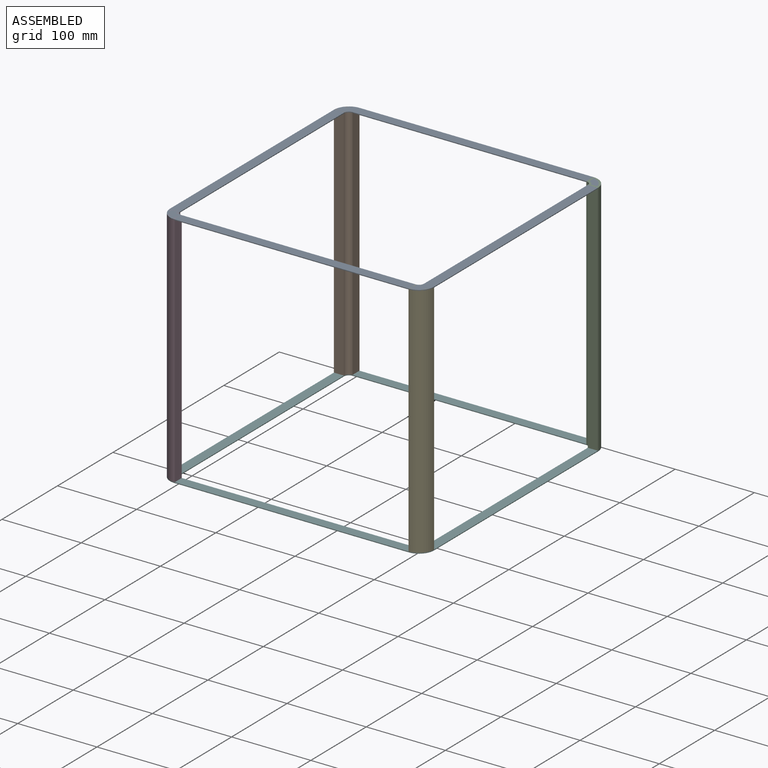
[diagram: assembled view]
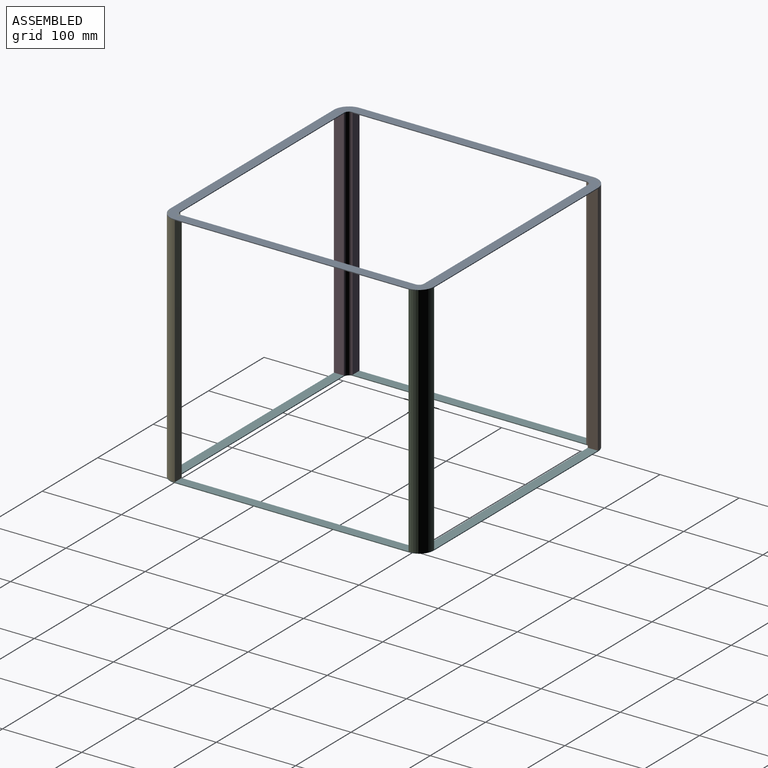
[diagram: assembled view, second angle]
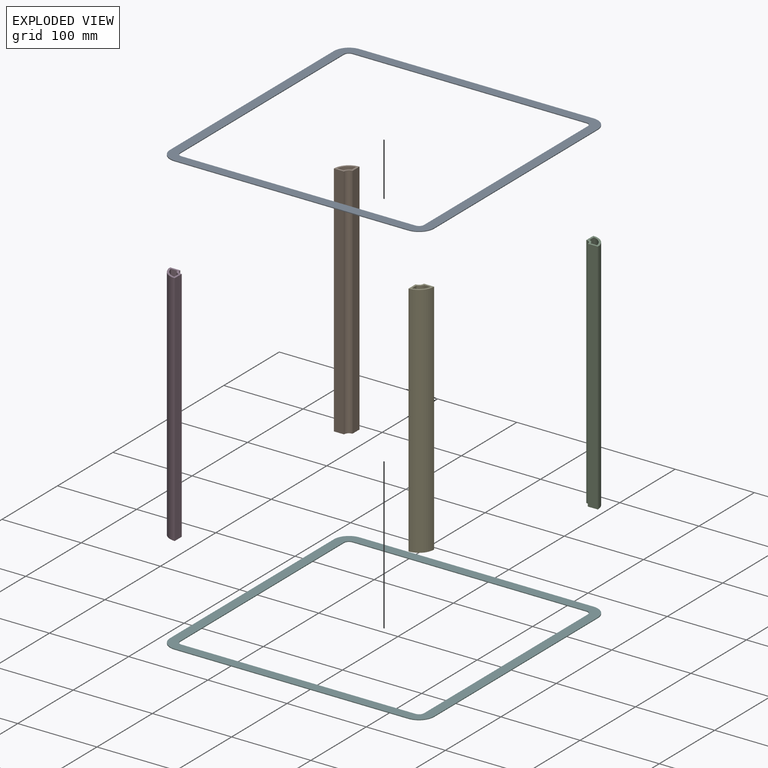
[diagram: exploded view]
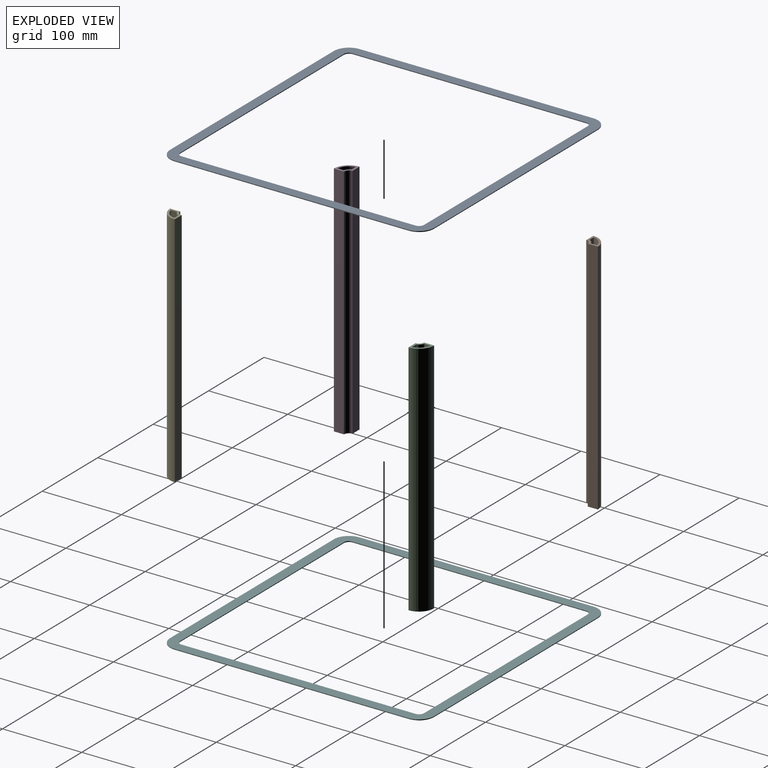
[diagram: exploded view, second angle]
ASSEMBLY  parts=6 mates=5
PART A: 18 faces, bbox 333.3x333.3x1 mm
  f0: plane 295.22x1mm, normal (0,1,0), area 295.2mm2, adj f1,f15,f16,f17
  f1: cylinder r=19.05mm len=19.05mm, axis (0,0,-1), area 29.9mm2, adj f0,f2,f16,f17
  f2: plane 295.22x1mm, normal (-1,0,0), area 295.2mm2, adj f1,f3,f16,f17
  f3: cylinder r=19.05mm len=19.05mm, axis (0,0,-1), area 29.9mm2, adj f2,f4,f16,f17
  f4: plane 295.22x1mm, normal (0,-1,0), area 295.2mm2, adj f3,f5,f16,f17
  f5: cylinder r=19.05mm len=19.05mm, axis (0,0,-1), area 29.9mm2, adj f4,f6,f16,f17
  f6: plane 295.22x1mm, normal (1,0,0), area 295.2mm2, adj f5,f15,f16,f17
  f7: cylinder r=6.35mm len=6.35mm, axis (0,0,-1), area 10mm2, adj f8,f14,f16,f17
  f8: plane 295.22x1mm, normal (-1,0,0), area 295.2mm2, adj f7,f9,f16,f17
  f9: cylinder r=6.35mm len=6.35mm, axis (0,0,-1), area 10mm2, adj f8,f10,f16,f17
  f10: plane 295.22x1mm, normal (0,1,0), area 295.2mm2, adj f9,f11,f16,f17
  f11: cylinder r=6.35mm len=6.35mm, axis (0,0,-1), area 10mm2, adj f10,f12,f16,f17
  f12: plane 295.22x1mm, normal (1,0,0), area 295.2mm2, adj f11,f13,f16,f17
  f13: cylinder r=6.35mm len=6.35mm, axis (0,0,-1), area 10mm2, adj f12,f14,f16,f17
  f14: plane 295.22x1mm, normal (0,-1,0), area 295.2mm2, adj f7,f13,f16,f17
  f15: cylinder r=19.05mm len=19.05mm, axis (0,0,-1), area 29.9mm2, adj f0,f6,f16,f17
  f16: plane 333.32x333.32mm, normal (0,0,1), area 16010.6mm2, adj f0,f1,f2,f3,f4,f5,f6,f7
  f17: plane 333.32x333.32mm, normal (0,0,-1), area 16010.6mm2, adj f0,f1,f2,f3,f4,f5,f6,f7
PART B: 11 faces, bbox 19.1x19.1x300 mm
  f0: plane 19.05x19.05mm, normal (0,0,1), area 138.5mm2, adj f1,f2,f3,f4,f6,f7,f8,f9
  f1: plane 300x12.7mm, normal (0,1,0), area 3810mm2, adj f0,f2,f4,f5
  f2: cylinder r=19.05mm len=300mm, axis (0,0,-1), area 8977.1mm2, adj f0,f1,f3,f5
  f3: plane 300x12.7mm, normal (1,0,0), area 3810mm2, adj f0,f2,f4,f5
  f4: cylinder r=6.35mm len=300mm, axis (0,0,-1), area 2992.4mm2, adj f0,f1,f3,f5
  f5: plane 19.05x19.05mm, normal (0,0,-1), area 253.4mm2, adj f1,f2,f3,f4
  f6: plane 297.5x7.87mm, normal (0,-1,0), area 2341.5mm2, adj f0,f7,f9,f10
  f7: cylinder r=16.55mm len=297.5mm, axis (0,0,-1), area 6240.8mm2, adj f0,f6,f8,f10
  f8: plane 297.5x7.87mm, normal (-1,0,0), area 2341.5mm2, adj f0,f7,f9,f10
  f9: cylinder r=8.85mm len=297.5mm, axis (0,0,-1), area 2627.7mm2, adj f0,f6,f8,f10
  f10: plane 13.86x13.86mm, normal (0,0,1), area 114.8mm2, adj f6,f7,f8,f9
PART C: same geometry as B
PART D: same geometry as B
PART E: same geometry as B
PART F: same geometry as A
PLACE A t=(-45.8,-29.75,-53.46)mm
PLACE B rot(axis=(0,0,-1),90deg) t=(-400.8,86.61,-352.46)mm
PLACE C rot(axis=(0,0,1),180deg) t=(-118.83,181.07,-352.46)mm
PLACE D t=(-306.34,-195.35,-352.46)mm
PLACE E rot(axis=(0,0,1),90deg) t=(-24.38,-100.89,-352.46)mm
PLACE F t=(-45.8,-29.75,-353.46)mm
MATE fastened B.f0 <-> A.f16  axis (0,0,1) through (-379.25,140.47,-52.46)mm
MATE fastened F.f16 <-> E.f5  axis (0,0,1) through (-45.93,-154.75,-352.46)mm
MATE fastened E.f0 <-> A.f16  axis (0,0,1) through (-64.98,-161.1,-52.46)mm
MATE fastened D.f0 <-> A.f16  axis (0,0,1) through (-379.25,-154.75,-52.46)mm
MATE fastened C.f0 <-> A.f16  axis (0,0,1) through (-64.98,159.52,-52.46)mm
